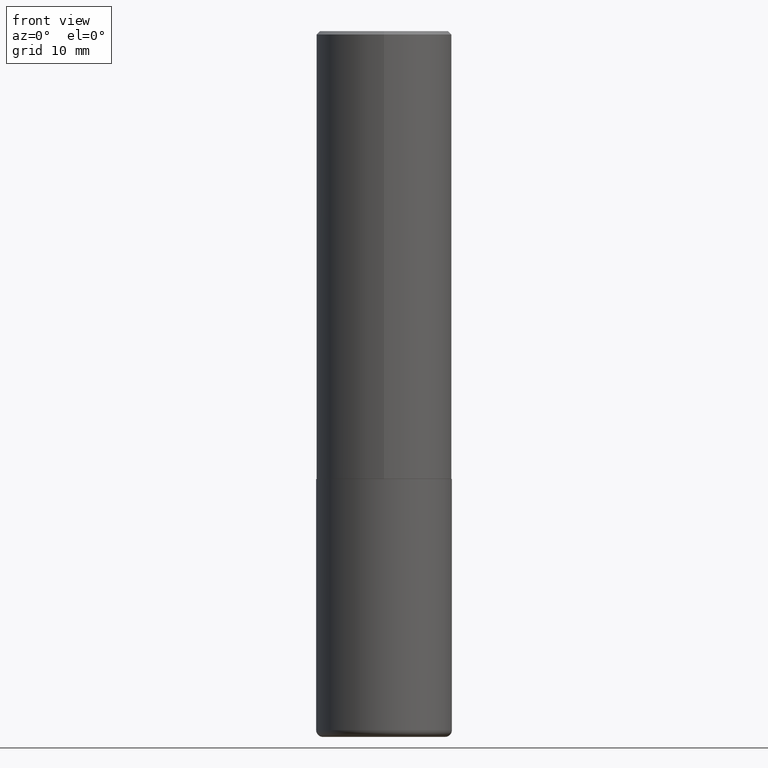
[diagram: clean part render]
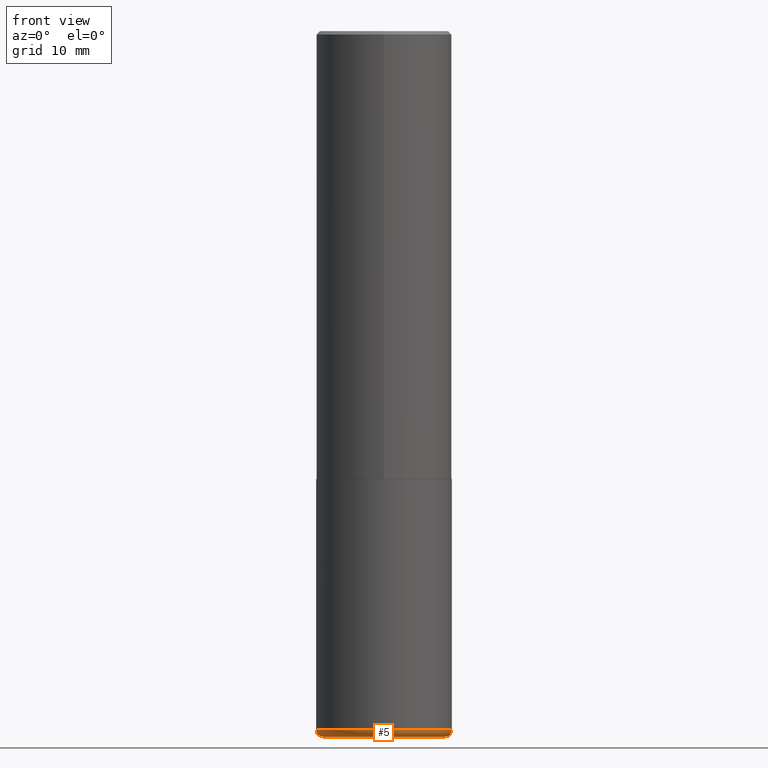
[diagram: same view with one face highlighted and labeled with its STEP entity id]
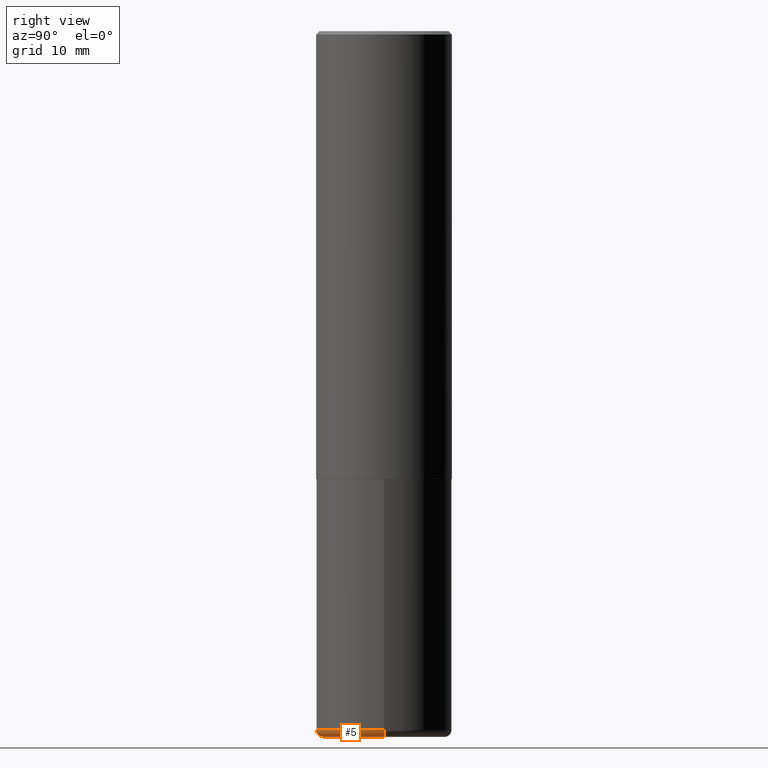
[diagram: same view with one face highlighted and labeled with its STEP entity id]
A machine part, front view. The second image highlights one B-rep face of the part: STEP entity #5.
A second angle (right view) of the same face is appended — the face is thin or edge-on in the first view.
In plain terms, the highlighted toroidal blend (fillet) surface has major radius 8.9992 mm and minor (blend) radius 1.0008 mm.
Its self-contained STEP definition (entity closure, byte-faithful):
#4 = AXIS2_PLACEMENT_3D ( 'NONE', #298, #327, #412 ) ;
#5 = ADVANCED_FACE ( 'NONE', ( #137 ), #66, .T. ) ;
#14 = CIRCLE ( 'NONE', #304, 0.03940000000000005997 ) ;
#34 = ORIENTED_EDGE ( 'NONE', *, *, #193, .F. ) ;
#36 = AXIS2_PLACEMENT_3D ( 'NONE', #160, #417, #129 ) ;
#41 = CARTESIAN_POINT ( 'NONE',  ( 1.001297202692504215E-28, -1.429587034189326149E-14, -4.094500000000000028 ) ) ;
#45 = DIRECTION ( 'NONE',  ( 1.000000000000000000, -6.982962677686266711E-15, 4.883557194083112340E-29 ) ) ;
#57 = AXIS2_PLACEMENT_3D ( 'NONE', #207, #335, #45 ) ;
#62 = VERTEX_POINT ( 'NONE', #203 ) ;
#63 = CIRCLE ( 'NONE', #36, 0.03940000000000005997 ) ;
#65 = VERTEX_POINT ( 'NONE', #81 ) ;
#66 = TOROIDAL_SURFACE ( 'NONE', #57, 0.3543000000000000038, 0.03940000000000009467 ) ;
#81 = CARTESIAN_POINT ( 'NONE',  ( 0.3937000000000001054, -1.690749838334792550E-14, -4.055100000000000371 ) ) ;
#96 = DIRECTION ( 'NONE',  ( -1.000000000000000000, 7.105427357601014480E-15, 0.000000000000000000 ) ) ;
#129 = DIRECTION ( 'NONE',  ( 1.000000000000000000, -6.982962677686267499E-15, 0.000000000000000000 ) ) ;
#137 = FACE_OUTER_BOUND ( 'NONE', #355, .T. ) ;
#160 = CARTESIAN_POINT ( 'NONE',  ( 0.3543000000000000038, -1.663236965384708391E-14, -4.055100000000000371 ) ) ;
#188 = ORIENTED_EDGE ( 'NONE', *, *, #268, .T. ) ;
#191 = CARTESIAN_POINT ( 'NONE',  ( 0.3543000000000000038, -1.676993401859750628E-14, -4.094500000000000028 ) ) ;
#193 = EDGE_CURVE ( 'NONE', #62, #65, #234, .T. ) ;
#203 = CARTESIAN_POINT ( 'NONE',  ( -0.3937000000000001054, -1.136089922645532513E-14, -4.055100000000000371 ) ) ;
#207 = CARTESIAN_POINT ( 'NONE',  ( 9.916620555961347550E-29, -1.415830597714284070E-14, -4.055100000000000371 ) ) ;
#229 = VERTEX_POINT ( 'NONE', #322 ) ;
#234 = CIRCLE ( 'NONE', #4, 0.3937000000000001054 ) ;
#236 = DIRECTION ( 'NONE',  ( -2.445468806185136597E-29, 3.491481338843145583E-15, 1.000000000000000000 ) ) ;
#248 = ORIENTED_EDGE ( 'NONE', *, *, #270, .F. ) ;
#256 = CARTESIAN_POINT ( 'NONE',  ( -0.3543000000000000038, -1.164085306434480532E-14, -4.055100000000000371 ) ) ;
#257 = VERTEX_POINT ( 'NONE', #191 ) ;
#259 = CIRCLE ( 'NONE', #405, 0.3543000000000000038 ) ;
#268 = EDGE_CURVE ( 'NONE', #257, #65, #63, .T. ) ;
#270 = EDGE_CURVE ( 'NONE', #229, #62, #14, .T. ) ;
#287 = ORIENTED_EDGE ( 'NONE', *, *, #320, .T. ) ;
#298 = CARTESIAN_POINT ( 'NONE',  ( 9.916620555961347550E-29, -1.415830597714284070E-14, -4.055100000000000371 ) ) ;
#304 = AXIS2_PLACEMENT_3D ( 'NONE', #256, #386, #96 ) ;
#307 = DIRECTION ( 'NONE',  ( 1.000000000000000000, -6.982962677686266711E-15, 0.000000000000000000 ) ) ;
#320 = EDGE_CURVE ( 'NONE', #229, #257, #259, .T. ) ;
#322 = CARTESIAN_POINT ( 'NONE',  ( -0.3543000000000000038, -1.156965832777527483E-14, -4.094500000000000028 ) ) ;
#327 = DIRECTION ( 'NONE',  ( -2.445468806185136597E-29, 3.491481338843145583E-15, 1.000000000000000000 ) ) ;
#335 = DIRECTION ( 'NONE',  ( -2.445468806185136597E-29, 3.491481338843145583E-15, 1.000000000000000000 ) ) ;
#355 = EDGE_LOOP ( 'NONE', ( #248, #287, #188, #34 ) ) ;
#386 = DIRECTION ( 'NONE',  ( 7.105427357601001859E-15, 1.000000000000000000, -3.491481338843145583E-15 ) ) ;
#405 = AXIS2_PLACEMENT_3D ( 'NONE', #41, #236, #307 ) ;
#412 = DIRECTION ( 'NONE',  ( 1.000000000000000000, -6.982962677686266711E-15, 0.000000000000000000 ) ) ;
#417 = DIRECTION ( 'NONE',  ( -6.982962677686266711E-15, -1.000000000000000000, 3.491481338843145583E-15 ) ) ;